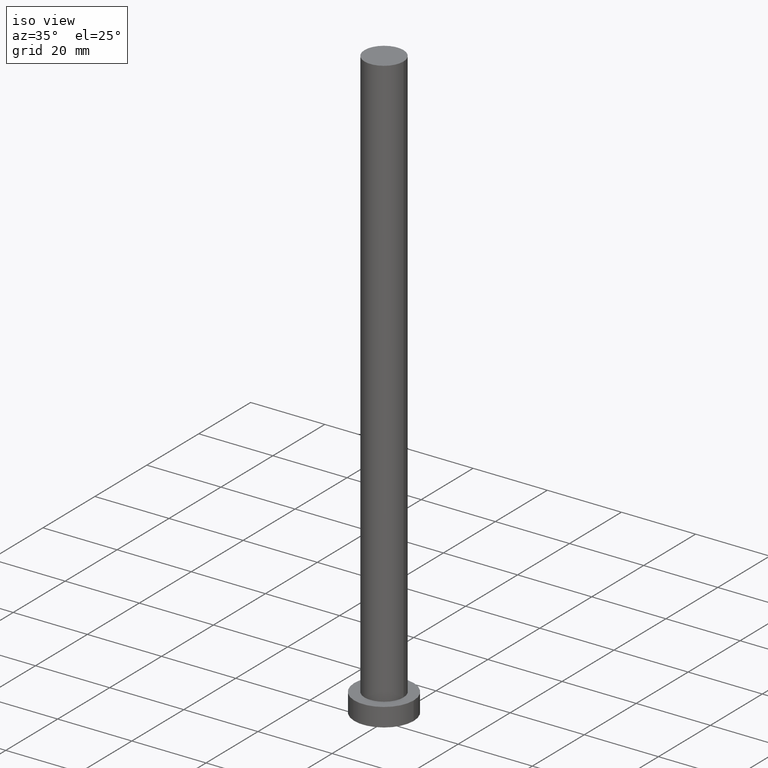
[diagram: clean part render]
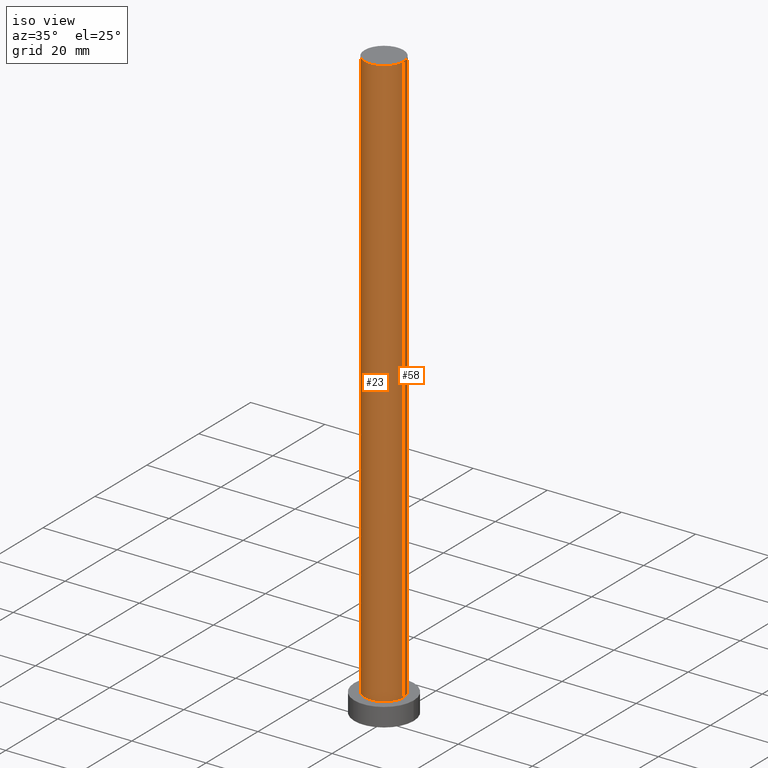
[diagram: same view with one multi-face feature highlighted, each face labeled with its STEP entity id]
A machine part, iso view. The highlighted faces form ONE feature: a constant-radius fillet chain: 2 tangent blend faces with common blend radius 5.25 mm. The faces share edges in the B-rep.
Their STEP definitions:
[1] entity #58 (Cylinder):
#5 = ORIENTED_EDGE ( 'NONE', *, *, #198, .F. ) ;
#15 = ORIENTED_EDGE ( 'NONE', *, *, #249, .T. ) ;
#22 = CARTESIAN_POINT ( 'NONE',  ( 5.250000000000000888, 6.429395695523605139E-16, 160.0000000000000000 ) ) ;
#27 = DIRECTION ( 'NONE',  ( -0.000000000000000000, -0.000000000000000000, -1.000000000000000000 ) ) ;
#38 = FACE_OUTER_BOUND ( 'NONE', #248, .T. ) ;
#40 = VECTOR ( 'NONE', #27, 1000.000000000000000 ) ;
#48 = CARTESIAN_POINT ( 'NONE',  ( 0.000000000000000000, 0.000000000000000000, 5.000000000000000000 ) ) ;
#49 = LINE ( 'NONE', #221, #40 ) ;
#58 = ADVANCED_FACE ( 'NONE', ( #38 ), #167, .T. ) ;
#65 = VERTEX_POINT ( 'NONE', #131 ) ;
#68 = ORIENTED_EDGE ( 'NONE', *, *, #97, .T. ) ;
#78 = AXIS2_PLACEMENT_3D ( 'NONE', #107, #184, #142 ) ;
#86 = CIRCLE ( 'NONE', #252, 5.250000000000000888 ) ;
#97 = EDGE_CURVE ( 'NONE', #124, #153, #164, .T. ) ;
#100 = DIRECTION ( 'NONE',  ( 0.000000000000000000, 0.000000000000000000, 1.000000000000000000 ) ) ;
#107 = CARTESIAN_POINT ( 'NONE',  ( 0.000000000000000000, 0.000000000000000000, 160.0000000000000000 ) ) ;
#115 = AXIS2_PLACEMENT_3D ( 'NONE', #169, #145, #187 ) ;
#124 = VERTEX_POINT ( 'NONE', #22 ) ;
#131 = CARTESIAN_POINT ( 'NONE',  ( -5.250000000000000888, 0.000000000000000000, 5.000000000000000000 ) ) ;
#132 = EDGE_CURVE ( 'NONE', #124, #245, #156, .T. ) ;
#134 = DIRECTION ( 'NONE',  ( 1.000000000000000000, 0.000000000000000000, 0.000000000000000000 ) ) ;
#142 = DIRECTION ( 'NONE',  ( -1.000000000000000000, 0.000000000000000000, 0.000000000000000000 ) ) ;
#145 = DIRECTION ( 'NONE',  ( 0.000000000000000000, 0.000000000000000000, 1.000000000000000000 ) ) ;
#153 = VERTEX_POINT ( 'NONE', #211 ) ;
#155 = ORIENTED_EDGE ( 'NONE', *, *, #132, .F. ) ;
#156 = CIRCLE ( 'NONE', #115, 5.250000000000000888 ) ;
#164 = LINE ( 'NONE', #233, #213 ) ;
#167 = CYLINDRICAL_SURFACE ( 'NONE', #78, 5.250000000000000888 ) ;
#169 = CARTESIAN_POINT ( 'NONE',  ( 0.000000000000000000, 0.000000000000000000, 160.0000000000000000 ) ) ;
#184 = DIRECTION ( 'NONE',  ( -0.000000000000000000, -0.000000000000000000, -1.000000000000000000 ) ) ;
#187 = DIRECTION ( 'NONE',  ( 1.000000000000000000, 0.000000000000000000, 0.000000000000000000 ) ) ;
#198 = EDGE_CURVE ( 'NONE', #245, #65, #49, .T. ) ;
#205 = DIRECTION ( 'NONE',  ( -0.000000000000000000, -0.000000000000000000, -1.000000000000000000 ) ) ;
#211 = CARTESIAN_POINT ( 'NONE',  ( 5.250000000000000888, 6.429395695523605139E-16, 5.000000000000000000 ) ) ;
#213 = VECTOR ( 'NONE', #205, 1000.000000000000000 ) ;
#217 = CARTESIAN_POINT ( 'NONE',  ( -5.250000000000000888, 0.000000000000000000, 160.0000000000000000 ) ) ;
#221 = CARTESIAN_POINT ( 'NONE',  ( -5.250000000000000888, 0.000000000000000000, 160.0000000000000000 ) ) ;
#233 = CARTESIAN_POINT ( 'NONE',  ( 5.250000000000000888, 6.429395695523605139E-16, 160.0000000000000000 ) ) ;
#245 = VERTEX_POINT ( 'NONE', #217 ) ;
#248 = EDGE_LOOP ( 'NONE', ( #155, #68, #15, #5 ) ) ;
#249 = EDGE_CURVE ( 'NONE', #153, #65, #86, .T. ) ;
#252 = AXIS2_PLACEMENT_3D ( 'NONE', #48, #100, #134 ) ;
[2] entity #23 (Cylinder):
#22 = CARTESIAN_POINT ( 'NONE',  ( 5.250000000000000888, 6.429395695523605139E-16, 160.0000000000000000 ) ) ;
#23 = ADVANCED_FACE ( 'NONE', ( #191 ), #90, .T. ) ;
#26 = ORIENTED_EDGE ( 'NONE', *, *, #114, .F. ) ;
#27 = DIRECTION ( 'NONE',  ( -0.000000000000000000, -0.000000000000000000, -1.000000000000000000 ) ) ;
#28 = AXIS2_PLACEMENT_3D ( 'NONE', #92, #212, #237 ) ;
#39 = CARTESIAN_POINT ( 'NONE',  ( 0.000000000000000000, 0.000000000000000000, 5.000000000000000000 ) ) ;
#40 = VECTOR ( 'NONE', #27, 1000.000000000000000 ) ;
#49 = LINE ( 'NONE', #221, #40 ) ;
#61 = DIRECTION ( 'NONE',  ( 1.000000000000000000, 0.000000000000000000, 0.000000000000000000 ) ) ;
#63 = AXIS2_PLACEMENT_3D ( 'NONE', #39, #204, #61 ) ;
#65 = VERTEX_POINT ( 'NONE', #131 ) ;
#71 = AXIS2_PLACEMENT_3D ( 'NONE', #255, #129, #76 ) ;
#76 = DIRECTION ( 'NONE',  ( -1.000000000000000000, 0.000000000000000000, 0.000000000000000000 ) ) ;
#83 = ORIENTED_EDGE ( 'NONE', *, *, #118, .T. ) ;
#90 = CYLINDRICAL_SURFACE ( 'NONE', #71, 5.250000000000000888 ) ;
#92 = CARTESIAN_POINT ( 'NONE',  ( 0.000000000000000000, 0.000000000000000000, 160.0000000000000000 ) ) ;
#97 = EDGE_CURVE ( 'NONE', #124, #153, #164, .T. ) ;
#114 = EDGE_CURVE ( 'NONE', #245, #124, #250, .T. ) ;
#118 = EDGE_CURVE ( 'NONE', #65, #153, #163, .T. ) ;
#124 = VERTEX_POINT ( 'NONE', #22 ) ;
#129 = DIRECTION ( 'NONE',  ( -0.000000000000000000, -0.000000000000000000, -1.000000000000000000 ) ) ;
#131 = CARTESIAN_POINT ( 'NONE',  ( -5.250000000000000888, 0.000000000000000000, 5.000000000000000000 ) ) ;
#153 = VERTEX_POINT ( 'NONE', #211 ) ;
#159 = ORIENTED_EDGE ( 'NONE', *, *, #198, .T. ) ;
#163 = CIRCLE ( 'NONE', #63, 5.250000000000000888 ) ;
#164 = LINE ( 'NONE', #233, #213 ) ;
#181 = EDGE_LOOP ( 'NONE', ( #196, #26, #159, #83 ) ) ;
#191 = FACE_OUTER_BOUND ( 'NONE', #181, .T. ) ;
#196 = ORIENTED_EDGE ( 'NONE', *, *, #97, .F. ) ;
#198 = EDGE_CURVE ( 'NONE', #245, #65, #49, .T. ) ;
#204 = DIRECTION ( 'NONE',  ( 0.000000000000000000, 0.000000000000000000, 1.000000000000000000 ) ) ;
#205 = DIRECTION ( 'NONE',  ( -0.000000000000000000, -0.000000000000000000, -1.000000000000000000 ) ) ;
#211 = CARTESIAN_POINT ( 'NONE',  ( 5.250000000000000888, 6.429395695523605139E-16, 5.000000000000000000 ) ) ;
#212 = DIRECTION ( 'NONE',  ( 0.000000000000000000, 0.000000000000000000, 1.000000000000000000 ) ) ;
#213 = VECTOR ( 'NONE', #205, 1000.000000000000000 ) ;
#217 = CARTESIAN_POINT ( 'NONE',  ( -5.250000000000000888, 0.000000000000000000, 160.0000000000000000 ) ) ;
#221 = CARTESIAN_POINT ( 'NONE',  ( -5.250000000000000888, 0.000000000000000000, 160.0000000000000000 ) ) ;
#233 = CARTESIAN_POINT ( 'NONE',  ( 5.250000000000000888, 6.429395695523605139E-16, 160.0000000000000000 ) ) ;
#237 = DIRECTION ( 'NONE',  ( 1.000000000000000000, 0.000000000000000000, 0.000000000000000000 ) ) ;
#245 = VERTEX_POINT ( 'NONE', #217 ) ;
#250 = CIRCLE ( 'NONE', #28, 5.250000000000000888 ) ;
#255 = CARTESIAN_POINT ( 'NONE',  ( 0.000000000000000000, 0.000000000000000000, 160.0000000000000000 ) ) ;